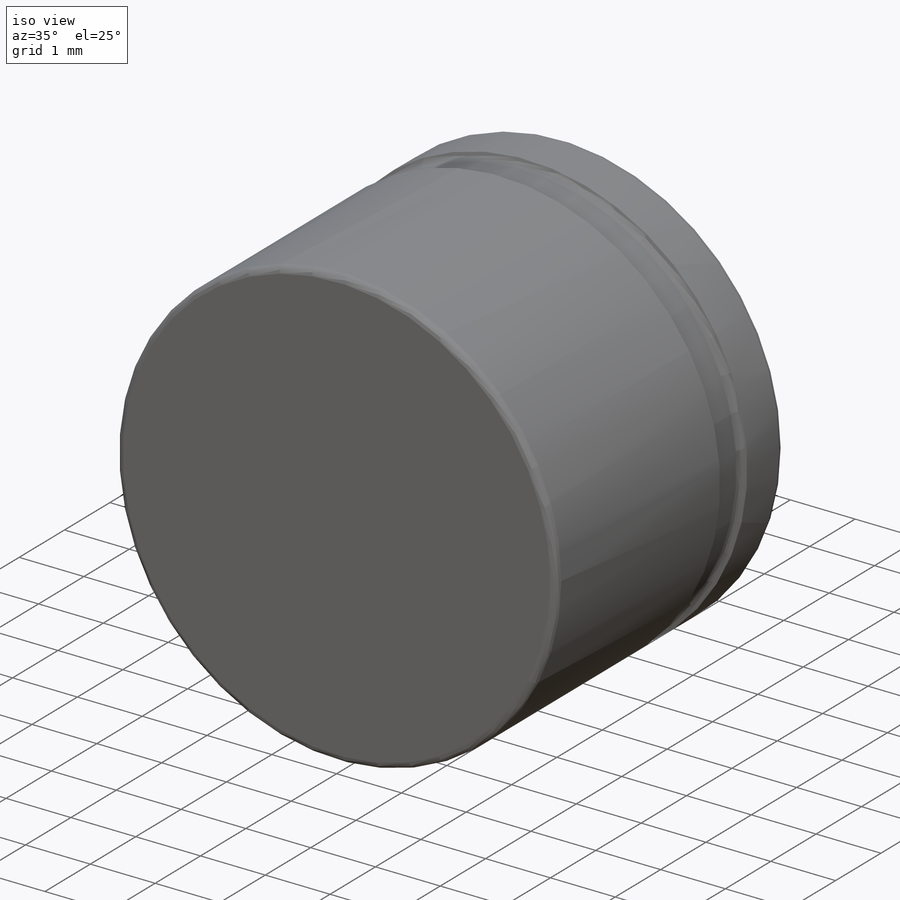
[diagram: iso view]
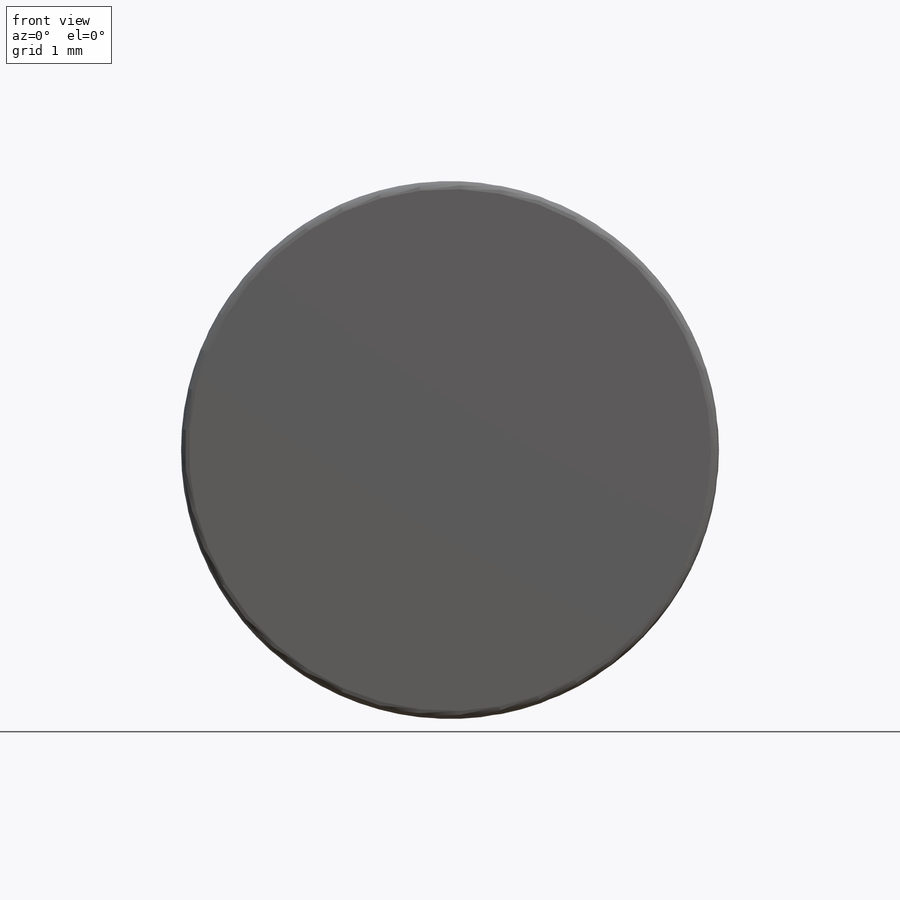
[diagram: front view]
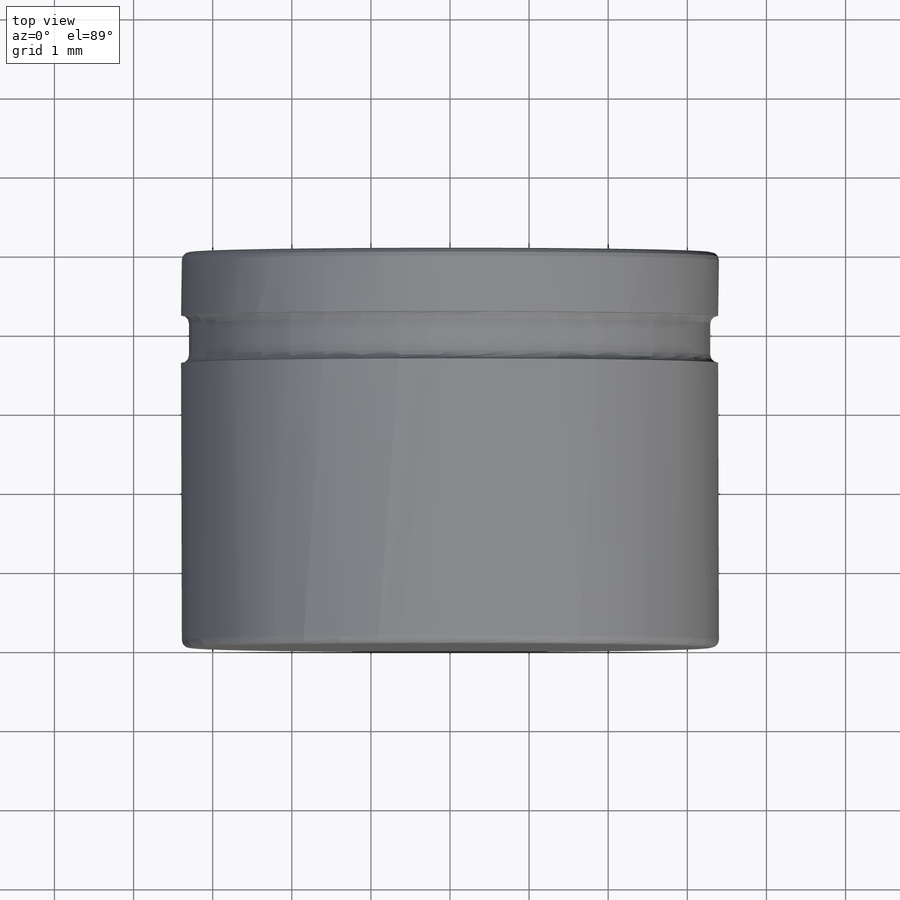
[diagram: top view]
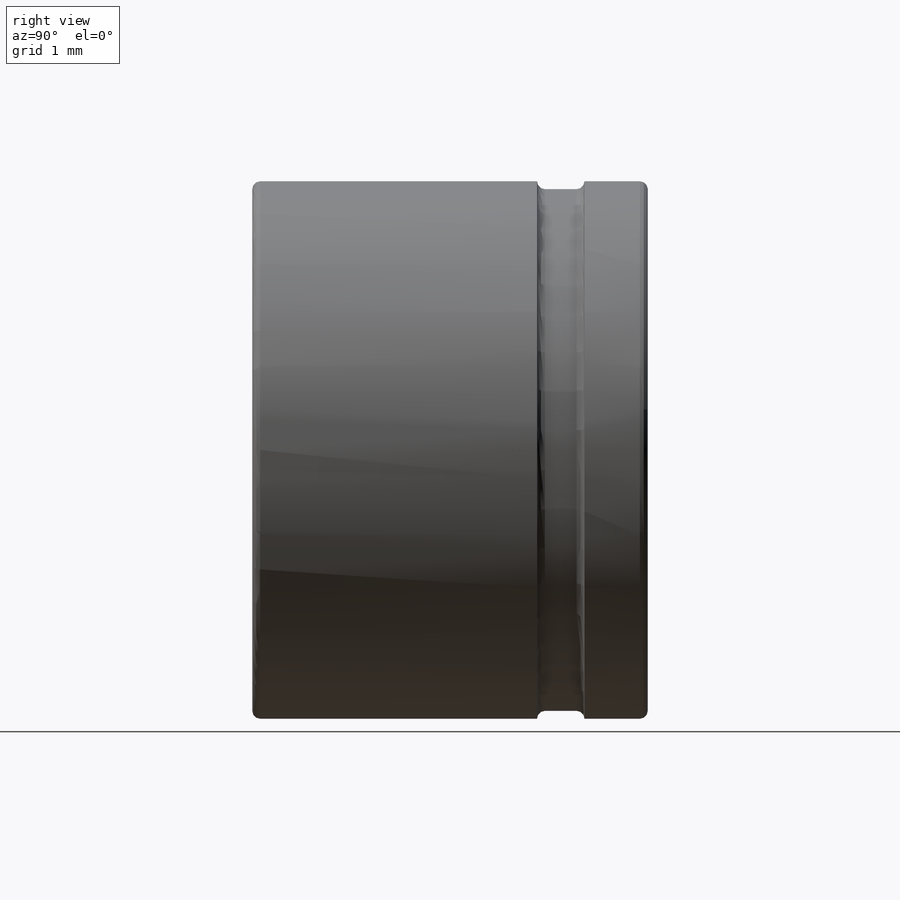
[diagram: right view]
SOLIDWORKS PART (.sldprt)
format: sldprt  version: not decoded by parser v0  size: 154,624 bytes
history: native  units: mm
features: plane x3, fillet x3, sketch x2, material x1, extrude x1, cut_extrude x1 (+12 scaffold rows collapsed)
feature tree (23):
  scaffold x12  (default folders/planes/origin — collapsed)
  material  "Matériau <non spécifié>"
  plane  "Plan de face"
  plane  "Plan de dessus"
  plane  "Plan de droite"
  sketch  "Esquisse1"  dims[D1=6.8mm]
  extrude  "Boss.-Extru.1"  Depth=5mm
  fillet  "Congé1"  Radius=0.1mm
  sketch  "Esquisse2"  dims[D1=3.2mm]
  cut_extrude  "Enlèv. mat.-Extru.1"  Depth=0.6mm
  fillet  "Congé2"  Radius=0.1mm
  fillet  "Congé3"  Radius=0.1mm
decode coverage: 7 of 7 modeling features carry decoded parameters
note: suppression state not decoded; provenance and decode notes live in map.json
